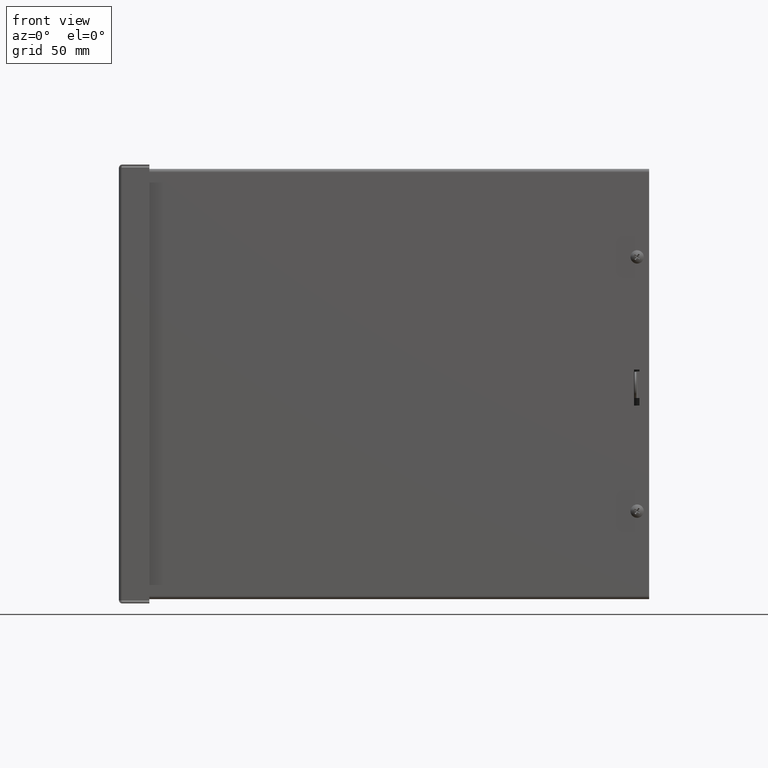
[diagram: clean part render]
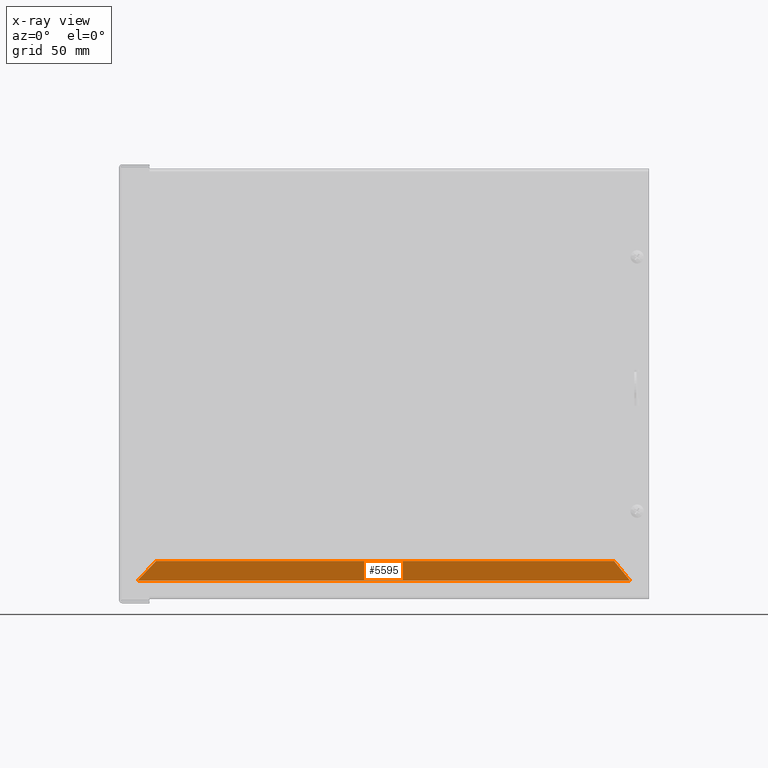
[diagram: x-ray — body ghosted, one internal face saturated and labeled with its STEP entity id]
A machine part, front view, then the same camera in x-ray: the body is ghosted and one INTERNAL B-rep face — a face not visible from any outside direction — is saturated and labeled: STEP entity #5595.
In plain terms, the highlighted planar face has unit normal (0, -1, 0).
Its self-contained STEP definition (entity closure, byte-faithful):
#280=PLANE($,#5931);
#706=FACE_OUTER_BOUND($,#1037,.T.);
#1037=EDGE_LOOP($,(#4096,#4097,#4098,#4099));
#1660=LINE($,#8893,#2117);
#1682=LINE($,#9239,#2139);
#1719=LINE($,#9319,#2176);
#1720=LINE($,#9321,#2177);
#2117=VECTOR($,#6478,0.726485947060065);
#2139=VECTOR($,#6512,0.774059400043236);
#2176=VECTOR($,#6605,14.1658672910765);
#2177=VECTOR($,#6608,13.1743578643761);
#2477=VERTEX_POINT($,#7805);
#2490=VERTEX_POINT($,#7855);
#2602=VERTEX_POINT($,#8891);
#2624=VERTEX_POINT($,#9238);
#3106=EDGE_CURVE($,#2477,#2602,#1660,.T.);
#3146=EDGE_CURVE($,#2624,#2490,#1682,.T.);
#3189=EDGE_CURVE($,#2490,#2477,#1719,.T.);
#3190=EDGE_CURVE($,#2602,#2624,#1720,.T.);
#4096=ORIENTED_EDGE($,*,*,#3106,.T.);
#4097=ORIENTED_EDGE($,*,*,#3190,.T.);
#4098=ORIENTED_EDGE($,*,*,#3146,.T.);
#4099=ORIENTED_EDGE($,*,*,#3189,.T.);
#5595=ADVANCED_FACE($,(#706),#280,.T.);
#5931=AXIS2_PLACEMENT_3D($,#9320,#6606,#6607);
#6478=DIRECTION($,(-0.632849133218134,7.18314296932476E-013,0.774275128481508));
#6512=DIRECTION($,(-0.686967207915202,-6.74404976308551E-013,-0.726688416894883));
#6605=DIRECTION($,(1.,1.97199664937882E-016,7.59260275857028E-014));
#6606=DIRECTION('center_axis',(1.73999337397485E-016,-1.,9.27868892830475E-013));
#6607=DIRECTION('ref_axis',(1.,0.,7.21911419532262E-014));
#6608=DIRECTION($,(-1.,-1.73694411746951E-016,-7.58100774760488E-014));
#7805=CARTESIAN_POINT('',(8.54693493408124,3.04749999999996,-38.6518587502541));
#7855=CARTESIAN_POINT('',(-5.61893235699529,3.04749999999996,-38.6518587502552));
#8891=CARTESIAN_POINT('',(8.08717893218908,3.0474999999999,-38.0893587502542));
#8893=CARTESIAN_POINT($,(8.17392962090852,3.04750000000055,-38.1954960539627));
#9238=CARTESIAN_POINT('',(-5.08717893218704,3.04749999999991,-38.0893587502552));
#9239=CARTESIAN_POINT($,(-4.52955568884203,3.04750000000119,-37.4994931100014));
#9319=CARTESIAN_POINT($,(1.34997567046441,3.04749999999996,-38.6518587502547));
#9320=CARTESIAN_POINT('Origin',(1.51455979171047,3.04749999999692,-42.0962248694254));
#9321=CARTESIAN_POINT($,(8.08717893218908,3.0474999999999,-38.0893587502542));